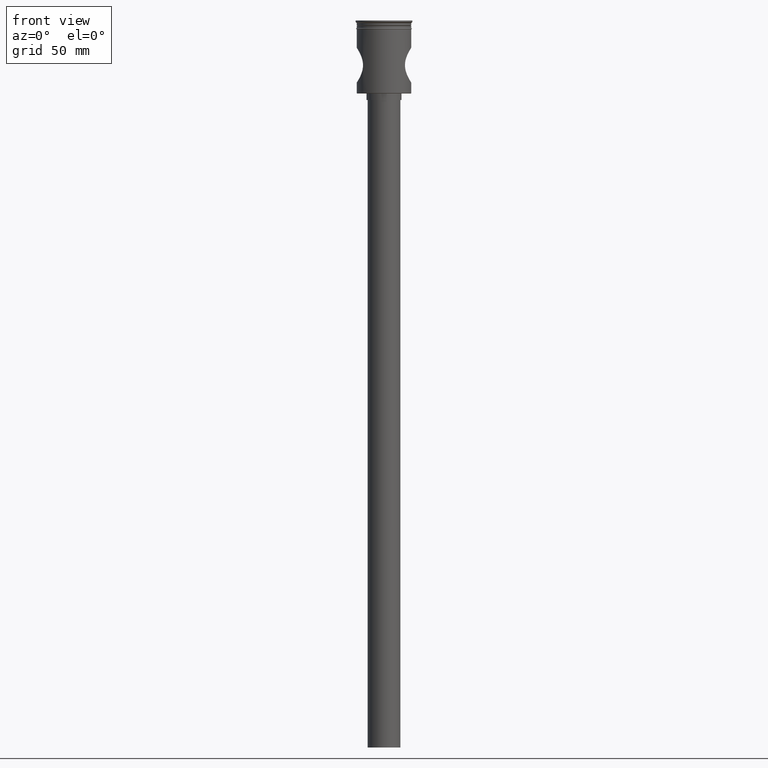
[diagram: clean part render]
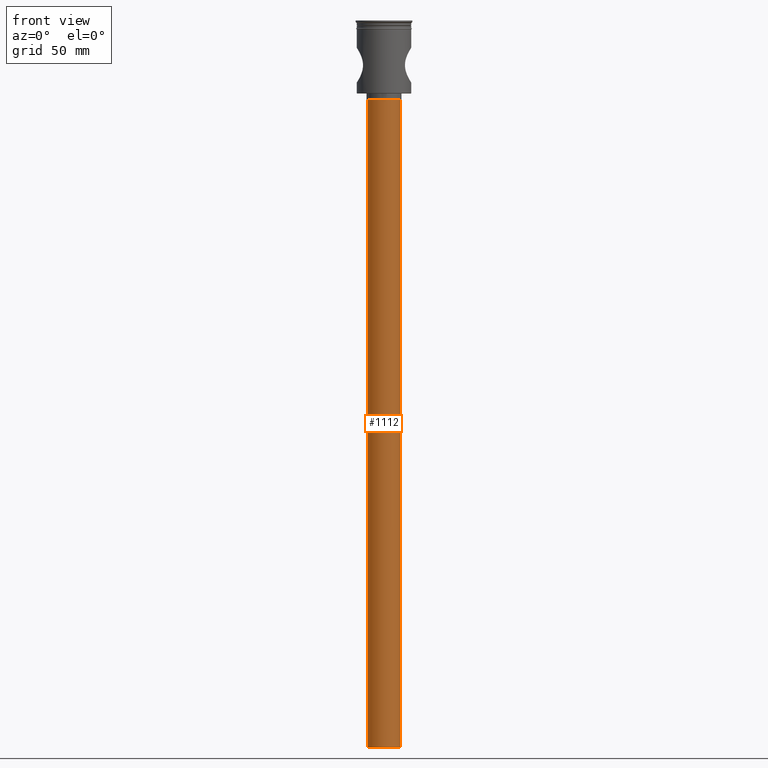
[diagram: same view with one face highlighted and labeled with its STEP entity id]
A machine part, front view. The second image highlights one B-rep face of the part: STEP entity #1112.
In plain terms, the highlighted cylindrical surface (edge-blend (fillet) strip) has radius 7.5 mm, axis along (-0, -0, 1).
Its self-contained STEP definition (entity closure, byte-faithful):
#184 = AXIS2_PLACEMENT_3D ( 'NONE', #1071, #853, #1220 ) ;
#220 = DIRECTION ( 'NONE',  ( -0.000000000000000000, -0.000000000000000000, 1.000000000000000000 ) ) ;
#232 = VERTEX_POINT ( 'NONE', #862 ) ;
#277 = CIRCLE ( 'NONE', #1185, 7.500000000000000000 ) ;
#298 = EDGE_CURVE ( 'NONE', #232, #1270, #277, .T. ) ;
#372 = CYLINDRICAL_SURFACE ( 'NONE', #184, 7.500000000000000000 ) ;
#407 = VECTOR ( 'NONE', #220, 1000.000000000000000 ) ;
#433 = CARTESIAN_POINT ( 'NONE',  ( -7.500000000000000000, 9.184850993605147944E-16, -36.50000000000000711 ) ) ;
#507 = CIRCLE ( 'NONE', #1157, 7.500000000000000000 ) ;
#527 = DIRECTION ( 'NONE',  ( 0.000000000000000000, 0.000000000000000000, -1.000000000000000000 ) ) ;
#620 = DIRECTION ( 'NONE',  ( -1.000000000000000000, 0.000000000000000000, 0.000000000000000000 ) ) ;
#720 = ORIENTED_EDGE ( 'NONE', *, *, #298, .F. ) ;
#803 = ORIENTED_EDGE ( 'NONE', *, *, #1543, .F. ) ;
#811 = CARTESIAN_POINT ( 'NONE',  ( 7.500000000000000000, 0.000000000000000000, -333.5000000000000000 ) ) ;
#830 = EDGE_CURVE ( 'NONE', #1373, #1491, #507, .T. ) ;
#853 = DIRECTION ( 'NONE',  ( -0.000000000000000000, -0.000000000000000000, 1.000000000000000000 ) ) ;
#862 = CARTESIAN_POINT ( 'NONE',  ( 7.500000000000000000, 0.000000000000000000, -333.5000000000000000 ) ) ;
#941 = CARTESIAN_POINT ( 'NONE',  ( 7.500000000000000000, 0.000000000000000000, -36.50000000000000711 ) ) ;
#964 = FACE_OUTER_BOUND ( 'NONE', #1473, .T. ) ;
#1010 = EDGE_CURVE ( 'NONE', #232, #1373, #1271, .T. ) ;
#1071 = CARTESIAN_POINT ( 'NONE',  ( 0.000000000000000000, 0.000000000000000000, -333.5000000000000000 ) ) ;
#1097 = CARTESIAN_POINT ( 'NONE',  ( 0.000000000000000000, 0.000000000000000000, -333.5000000000000000 ) ) ;
#1112 = ADVANCED_FACE ( 'NONE', ( #964 ), #372, .T. ) ;
#1135 = CARTESIAN_POINT ( 'NONE',  ( -7.500000000000000000, 9.184850993605147944E-16, -333.5000000000000000 ) ) ;
#1144 = DIRECTION ( 'NONE',  ( -1.000000000000000000, 0.000000000000000000, 0.000000000000000000 ) ) ;
#1157 = AXIS2_PLACEMENT_3D ( 'NONE', #1477, #527, #1144 ) ;
#1185 = AXIS2_PLACEMENT_3D ( 'NONE', #1097, #1212, #620 ) ;
#1212 = DIRECTION ( 'NONE',  ( 0.000000000000000000, 0.000000000000000000, -1.000000000000000000 ) ) ;
#1220 = DIRECTION ( 'NONE',  ( 1.000000000000000000, 0.000000000000000000, 0.000000000000000000 ) ) ;
#1241 = DIRECTION ( 'NONE',  ( -0.000000000000000000, -0.000000000000000000, 1.000000000000000000 ) ) ;
#1270 = VERTEX_POINT ( 'NONE', #1135 ) ;
#1271 = LINE ( 'NONE', #811, #407 ) ;
#1273 = CARTESIAN_POINT ( 'NONE',  ( -7.500000000000000000, 9.184850993605147944E-16, -333.5000000000000000 ) ) ;
#1310 = ORIENTED_EDGE ( 'NONE', *, *, #830, .T. ) ;
#1373 = VERTEX_POINT ( 'NONE', #941 ) ;
#1377 = LINE ( 'NONE', #1273, #1492 ) ;
#1430 = ORIENTED_EDGE ( 'NONE', *, *, #1010, .T. ) ;
#1473 = EDGE_LOOP ( 'NONE', ( #803, #720, #1430, #1310 ) ) ;
#1477 = CARTESIAN_POINT ( 'NONE',  ( 0.000000000000000000, 0.000000000000000000, -36.50000000000000711 ) ) ;
#1491 = VERTEX_POINT ( 'NONE', #433 ) ;
#1492 = VECTOR ( 'NONE', #1241, 1000.000000000000000 ) ;
#1543 = EDGE_CURVE ( 'NONE', #1270, #1491, #1377, .T. ) ;